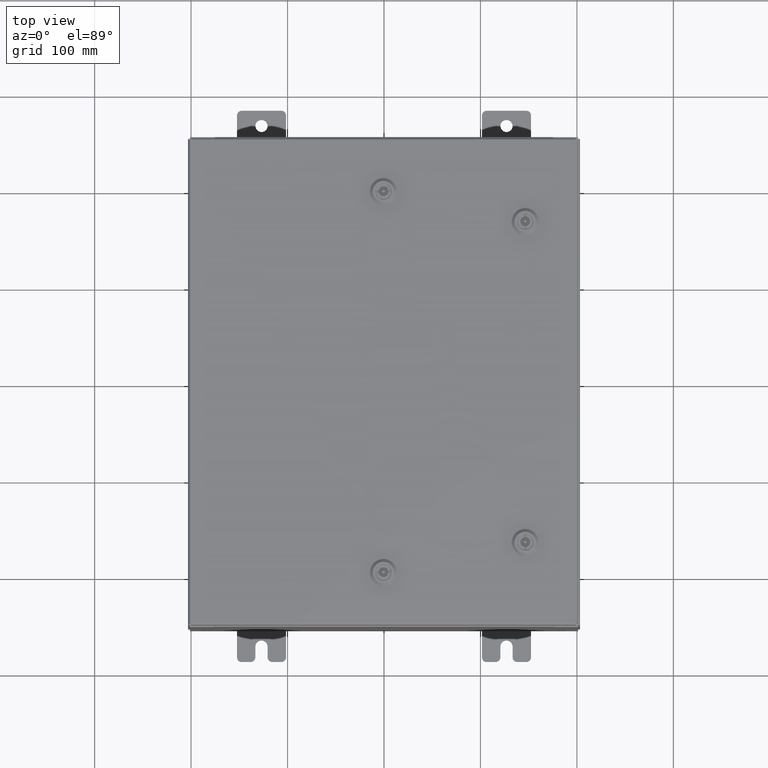
[diagram: clean part render]
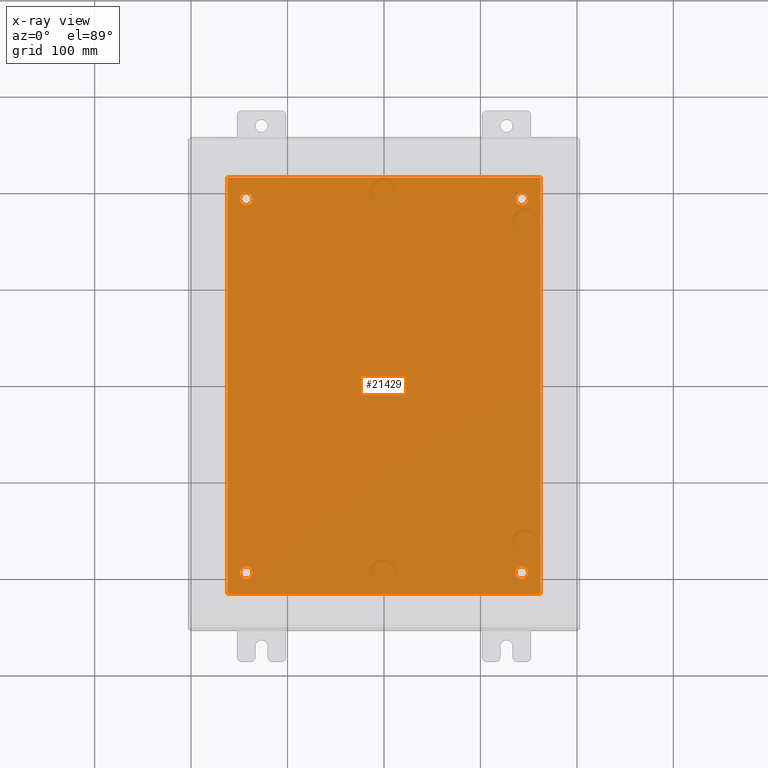
[diagram: x-ray — body ghosted, one internal face saturated and labeled with its STEP entity id]
A machine part, top view, then the same camera in x-ray: the body is ghosted and one INTERNAL B-rep face — a face not visible from any outside direction — is saturated and labeled: STEP entity #21429.
In plain terms, the highlighted planar face has unit normal (0, 0, -1).
Its self-contained STEP definition (entity closure, byte-faithful):
#261 = DIRECTION ( 'NONE',  ( -1.000000000000000000, 0.0000000000000000000, 0.0000000000000000000 ) ) ;
#316 = DIRECTION ( 'NONE',  ( 1.000000000000000000, 0.0000000000000000000, 0.0000000000000000000 ) ) ;
#591 = VERTEX_POINT ( 'NONE', #18741 ) ;
#607 = DIRECTION ( 'NONE',  ( -0.0000000000000000000, -0.0000000000000000000, 1.000000000000000000 ) ) ;
#764 = DIRECTION ( 'NONE',  ( -0.0000000000000000000, -0.0000000000000000000, 1.000000000000000000 ) ) ;
#947 = ORIENTED_EDGE ( 'NONE', *, *, #47650, .F. ) ;
#1974 = CARTESIAN_POINT ( 'NONE',  ( 0.0000000000000000000, 0.0000000000000000000, -0.1039999999999999800 ) ) ;
#2646 = CARTESIAN_POINT ( 'NONE',  ( -6.382999999999998200, -8.499999999999998200, -0.1039999999999998100 ) ) ;
#3522 = EDGE_LOOP ( 'NONE', ( #46408, #23995, #52836, #947 ) ) ;
#3892 = EDGE_LOOP ( 'NONE', ( #8463, #35896 ) ) ;
#5201 = CARTESIAN_POINT ( 'NONE',  ( -6.499999999999998200, -8.499999999999998200, -0.1039999999999999800 ) ) ;
#5282 = FACE_BOUND ( 'NONE', #16078, .T. ) ;
#6331 = VERTEX_POINT ( 'NONE', #11238 ) ;
#7001 = EDGE_CURVE ( 'NONE', #42358, #28581, #54337, .T. ) ;
#8463 = ORIENTED_EDGE ( 'NONE', *, *, #21290, .T. ) ;
#8833 = EDGE_CURVE ( 'NONE', #55344, #9569, #26735, .T. ) ;
#9569 = VERTEX_POINT ( 'NONE', #2646 ) ;
#10300 = CARTESIAN_POINT ( 'NONE',  ( 5.874999999999999100, 7.625000000000002700, -0.1039999999999999800 ) ) ;
#10807 = CARTESIAN_POINT ( 'NONE',  ( 5.625000000000004400, -7.625000000000000900, -0.1039999999999999800 ) ) ;
#11238 = CARTESIAN_POINT ( 'NONE',  ( 6.383000000000000900, -8.499999999999998200, -0.1039999999999999800 ) ) ;
#11770 = PLANE ( 'NONE',  #19943 ) ;
#12587 = CARTESIAN_POINT ( 'NONE',  ( 5.625000000000004400, -7.625000000000000900, -0.1039999999999999800 ) ) ;
#12603 = EDGE_CURVE ( 'NONE', #62821, #55344, #60076, .T. ) ;
#13342 = VERTEX_POINT ( 'NONE', #41012 ) ;
#15187 = CARTESIAN_POINT ( 'NONE',  ( 5.375000000000006200, -7.625000000000000900, -0.1039999999999999800 ) ) ;
#15683 = DIRECTION ( 'NONE',  ( -1.000000000000000000, 0.0000000000000000000, 0.0000000000000000000 ) ) ;
#16009 = DIRECTION ( 'NONE',  ( -0.0000000000000000000, -0.0000000000000000000, 1.000000000000000000 ) ) ;
#16078 = EDGE_LOOP ( 'NONE', ( #60077, #27053 ) ) ;
#16647 = DIRECTION ( 'NONE',  ( -1.000000000000000000, 0.0000000000000000000, -0.0000000000000000000 ) ) ;
#16680 = FACE_BOUND ( 'NONE', #62105, .T. ) ;
#17480 = DIRECTION ( 'NONE',  ( -1.000000000000000000, 0.0000000000000000000, 0.0000000000000000000 ) ) ;
#18189 = FACE_BOUND ( 'NONE', #3892, .T. ) ;
#18741 = CARTESIAN_POINT ( 'NONE',  ( 5.375000000000001800, 7.625000000000002700, -0.1039999999999999800 ) ) ;
#19291 = EDGE_CURVE ( 'NONE', #591, #34184, #39199, .T. ) ;
#19795 = CIRCLE ( 'NONE', #24281, 0.2499999999999987000 ) ;
#19943 = AXIS2_PLACEMENT_3D ( 'NONE', #1974, #45859, #16647 ) ;
#20157 = CARTESIAN_POINT ( 'NONE',  ( 5.625000000000000000, 7.625000000000002700, -0.1039999999999999800 ) ) ;
#20874 = CARTESIAN_POINT ( 'NONE',  ( -6.382999999999998200, 8.500000000000000000, -0.1039999999999998100 ) ) ;
#21174 = EDGE_CURVE ( 'NONE', #9569, #6331, #37914, .T. ) ;
#21187 = VECTOR ( 'NONE', #40317, 39.37007874015748100 ) ;
#21290 = EDGE_CURVE ( 'NONE', #48159, #51322, #58636, .T. ) ;
#21429 = ADVANCED_FACE ( 'NONE', ( #18189, #5282, #29656, #16680, #42597 ), #11770, .T. ) ;
#21444 = CIRCLE ( 'NONE', #34008, 0.2499999999999998100 ) ;
#21498 = VECTOR ( 'NONE', #52101, 39.37007874015748100 ) ;
#22894 = CARTESIAN_POINT ( 'NONE',  ( 6.383000000000002700, -8.499999999999998200, -0.1039999999999998100 ) ) ;
#23194 = EDGE_CURVE ( 'NONE', #28581, #42358, #32557, .T. ) ;
#23995 = ORIENTED_EDGE ( 'NONE', *, *, #8833, .F. ) ;
#24281 = AXIS2_PLACEMENT_3D ( 'NONE', #57294, #28099, #62175 ) ;
#25063 = DIRECTION ( 'NONE',  ( -1.000000000000000000, 0.0000000000000000000, 0.0000000000000000000 ) ) ;
#26735 = LINE ( 'NONE', #20874, #41258 ) ;
#27053 = ORIENTED_EDGE ( 'NONE', *, *, #35737, .T. ) ;
#27765 = CARTESIAN_POINT ( 'NONE',  ( -5.875000000000000000, 7.625000000000001800, -0.1039999999999999800 ) ) ;
#28099 = DIRECTION ( 'NONE',  ( -0.0000000000000000000, -0.0000000000000000000, 1.000000000000000000 ) ) ;
#28581 = VERTEX_POINT ( 'NONE', #34036 ) ;
#29417 = DIRECTION ( 'NONE',  ( -0.0000000000000000000, -0.0000000000000000000, 1.000000000000000000 ) ) ;
#29580 = CIRCLE ( 'NONE', #44341, 0.2499999999999987000 ) ;
#29656 = FACE_BOUND ( 'NONE', #30761, .T. ) ;
#29748 = CARTESIAN_POINT ( 'NONE',  ( -5.625000000000000000, -7.625000000000001800, -0.1039999999999999800 ) ) ;
#29900 = CARTESIAN_POINT ( 'NONE',  ( -5.625000000000000000, 7.625000000000001800, -0.1039999999999999800 ) ) ;
#30761 = EDGE_LOOP ( 'NONE', ( #42019, #51637 ) ) ;
#31419 = AXIS2_PLACEMENT_3D ( 'NONE', #58611, #29417, #261 ) ;
#32557 = CIRCLE ( 'NONE', #31419, 0.2499999999999998100 ) ;
#33690 = EDGE_CURVE ( 'NONE', #34184, #591, #19795, .T. ) ;
#34008 = AXIS2_PLACEMENT_3D ( 'NONE', #29748, #607, #34637 ) ;
#34036 = CARTESIAN_POINT ( 'NONE',  ( -5.375000000000000900, 7.625000000000001800, -0.1039999999999999800 ) ) ;
#34184 = VERTEX_POINT ( 'NONE', #10300 ) ;
#34637 = DIRECTION ( 'NONE',  ( -1.000000000000000000, 0.0000000000000000000, 0.0000000000000000000 ) ) ;
#34794 = DIRECTION ( 'NONE',  ( -1.000000000000000000, 0.0000000000000000000, 0.0000000000000000000 ) ) ;
#35405 = CARTESIAN_POINT ( 'NONE',  ( -6.499999999999998200, 8.500000000000000000, -0.1039999999999999800 ) ) ;
#35737 = EDGE_CURVE ( 'NONE', #37022, #13342, #29580, .T. ) ;
#35896 = ORIENTED_EDGE ( 'NONE', *, *, #43413, .T. ) ;
#36046 = CARTESIAN_POINT ( 'NONE',  ( -6.382999999999998200, 8.500000000000000000, -0.1039999999999998100 ) ) ;
#37022 = VERTEX_POINT ( 'NONE', #15187 ) ;
#37256 = VECTOR ( 'NONE', #316, 39.37007874015748100 ) ;
#37914 = LINE ( 'NONE', #5201, #37256 ) ;
#37944 = CARTESIAN_POINT ( 'NONE',  ( 6.383000000000000900, 8.500000000000000000, -0.1039999999999999800 ) ) ;
#39199 = CIRCLE ( 'NONE', #50439, 0.2499999999999987000 ) ;
#40317 = DIRECTION ( 'NONE',  ( -1.000000000000000000, -0.0000000000000000000, -0.0000000000000000000 ) ) ;
#40487 = ORIENTED_EDGE ( 'NONE', *, *, #23194, .T. ) ;
#41012 = CARTESIAN_POINT ( 'NONE',  ( 5.875000000000003600, -7.625000000000000900, -0.1039999999999999800 ) ) ;
#41258 = VECTOR ( 'NONE', #54986, 39.37007874015748100 ) ;
#42019 = ORIENTED_EDGE ( 'NONE', *, *, #33690, .T. ) ;
#42358 = VERTEX_POINT ( 'NONE', #27765 ) ;
#42597 = FACE_OUTER_BOUND ( 'NONE', #3522, .T. ) ;
#43413 = EDGE_CURVE ( 'NONE', #51322, #48159, #21444, .T. ) ;
#44341 = AXIS2_PLACEMENT_3D ( 'NONE', #12587, #46685, #17480 ) ;
#44892 = DIRECTION ( 'NONE',  ( -0.0000000000000000000, -0.0000000000000000000, 1.000000000000000000 ) ) ;
#45210 = CARTESIAN_POINT ( 'NONE',  ( -5.625000000000000000, -7.625000000000001800, -0.1039999999999999800 ) ) ;
#45859 = DIRECTION ( 'NONE',  ( 0.0000000000000000000, 0.0000000000000000000, -1.000000000000000000 ) ) ;
#46408 = ORIENTED_EDGE ( 'NONE', *, *, #21174, .F. ) ;
#46685 = DIRECTION ( 'NONE',  ( -0.0000000000000000000, -0.0000000000000000000, 1.000000000000000000 ) ) ;
#47650 = EDGE_CURVE ( 'NONE', #6331, #62821, #60375, .T. ) ;
#48159 = VERTEX_POINT ( 'NONE', #60150 ) ;
#48292 = AXIS2_PLACEMENT_3D ( 'NONE', #10807, #44892, #15683 ) ;
#50107 = DIRECTION ( 'NONE',  ( -1.000000000000000000, 0.0000000000000000000, 0.0000000000000000000 ) ) ;
#50439 = AXIS2_PLACEMENT_3D ( 'NONE', #20157, #54267, #25063 ) ;
#51322 = VERTEX_POINT ( 'NONE', #58804 ) ;
#51637 = ORIENTED_EDGE ( 'NONE', *, *, #19291, .T. ) ;
#52101 = DIRECTION ( 'NONE',  ( 0.0000000000000000000, 1.000000000000000000, 0.0000000000000000000 ) ) ;
#52836 = ORIENTED_EDGE ( 'NONE', *, *, #12603, .F. ) ;
#54267 = DIRECTION ( 'NONE',  ( -0.0000000000000000000, -0.0000000000000000000, 1.000000000000000000 ) ) ;
#54337 = CIRCLE ( 'NONE', #63158, 0.2499999999999998100 ) ;
#54986 = DIRECTION ( 'NONE',  ( 0.0000000000000000000, -1.000000000000000000, 0.0000000000000000000 ) ) ;
#55344 = VERTEX_POINT ( 'NONE', #36046 ) ;
#57294 = CARTESIAN_POINT ( 'NONE',  ( 5.625000000000000000, 7.625000000000002700, -0.1039999999999999800 ) ) ;
#57942 = EDGE_CURVE ( 'NONE', #13342, #37022, #62145, .T. ) ;
#58611 = CARTESIAN_POINT ( 'NONE',  ( -5.625000000000000000, 7.625000000000001800, -0.1039999999999999800 ) ) ;
#58636 = CIRCLE ( 'NONE', #60349, 0.2499999999999998100 ) ;
#58804 = CARTESIAN_POINT ( 'NONE',  ( -5.875000000000000000, -7.625000000000001800, -0.1039999999999999800 ) ) ;
#60076 = LINE ( 'NONE', #35405, #21187 ) ;
#60077 = ORIENTED_EDGE ( 'NONE', *, *, #57942, .T. ) ;
#60150 = CARTESIAN_POINT ( 'NONE',  ( -5.375000000000000900, -7.625000000000001800, -0.1039999999999999800 ) ) ;
#60349 = AXIS2_PLACEMENT_3D ( 'NONE', #45210, #16009, #50107 ) ;
#60375 = LINE ( 'NONE', #22894, #21498 ) ;
#61590 = ORIENTED_EDGE ( 'NONE', *, *, #7001, .T. ) ;
#62105 = EDGE_LOOP ( 'NONE', ( #40487, #61590 ) ) ;
#62145 = CIRCLE ( 'NONE', #48292, 0.2499999999999987000 ) ;
#62175 = DIRECTION ( 'NONE',  ( -1.000000000000000000, 0.0000000000000000000, 0.0000000000000000000 ) ) ;
#62821 = VERTEX_POINT ( 'NONE', #37944 ) ;
#63158 = AXIS2_PLACEMENT_3D ( 'NONE', #29900, #764, #34794 ) ;